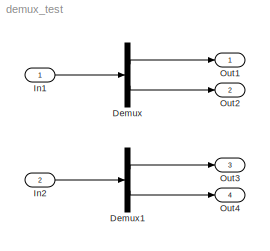
MODEL demux_test
KIND model
BLOCK [Demux] Demux
  DisplayOption = bar
  Outputs = 2
  Ports = [1, 2]
  SID = 3
BLOCK [Demux] Demux1
  DisplayOption = bar
  Outputs = [1 2]
  Ports = [1, 2]
  SID = 4
BLOCK [Inport] In1
  IconDisplay = Port number
  SID = 1
BLOCK [Inport] In2
  IconDisplay = Port number
  Port = 2
  PortDimensions = 3
  SID = 2
BLOCK [Outport] Out1
  IconDisplay = Port number
  SID = 5
BLOCK [Outport] Out2
  IconDisplay = Port number
  Port = 2
  SID = 6
BLOCK [Outport] Out3
  IconDisplay = Port number
  Port = 3
  SID = 7
BLOCK [Outport] Out4
  IconDisplay = Port number
  Port = 4
  SID = 8
LINE Demux1:1 -> Out3:1
LINE Demux1:2 -> Out4:1
LINE Demux:1 -> Out1:1
LINE Demux:2 -> Out2:1
LINE In1:1 -> Demux:1
LINE In2:1 -> Demux1:1
